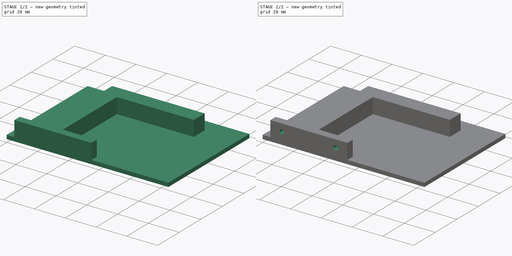
[diagram: build sequence overview — one tinted view per stage of 2, left to right]
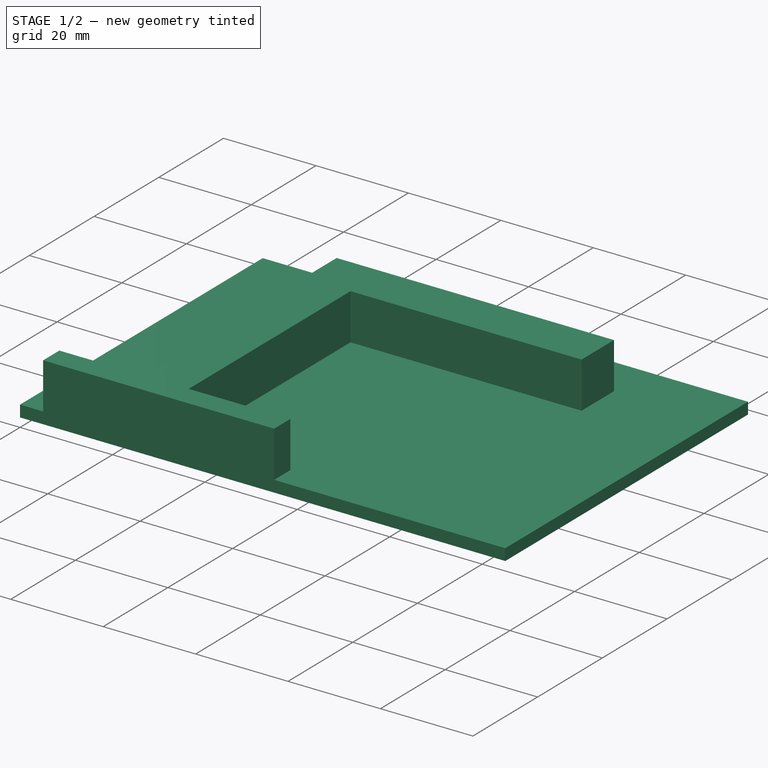
[diagram: stage 1 of 2 — iso view after this stage's code; geometry added in this stage tinted green]
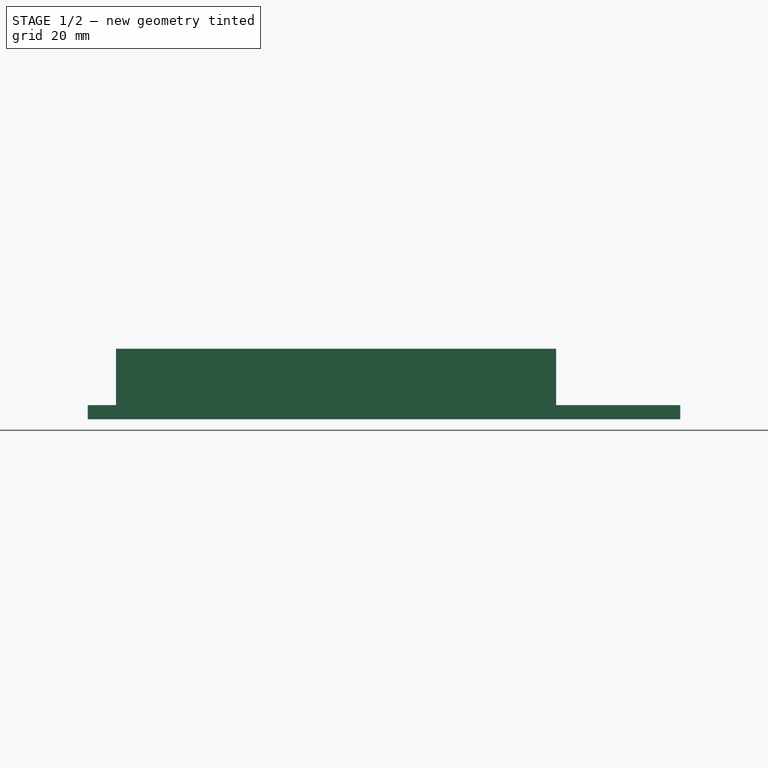
[diagram: stage 1 of 2 — front view after this stage's code; geometry added in this stage tinted green]
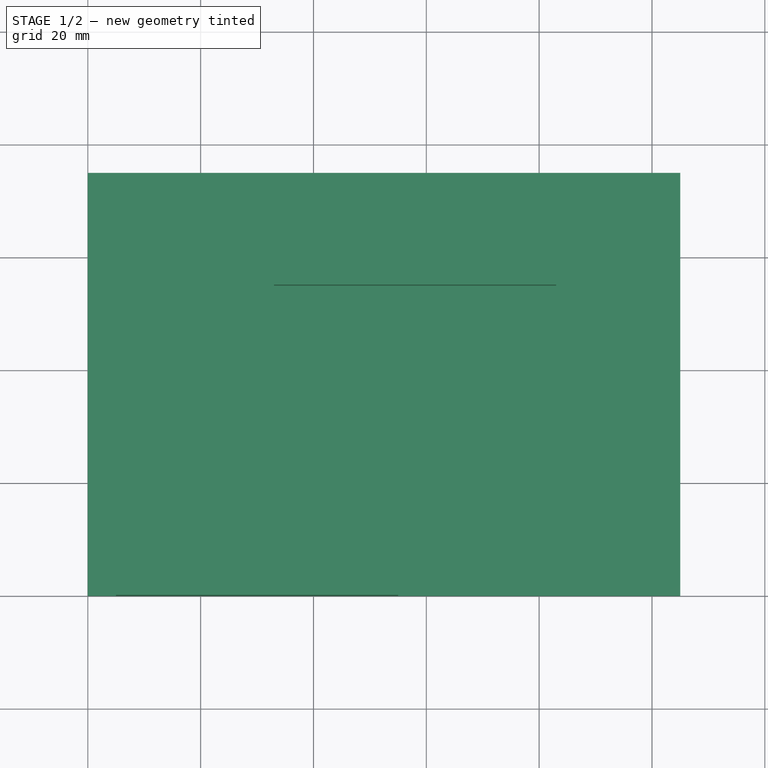
[diagram: stage 1 of 2 — top view after this stage's code; geometry added in this stage tinted green]
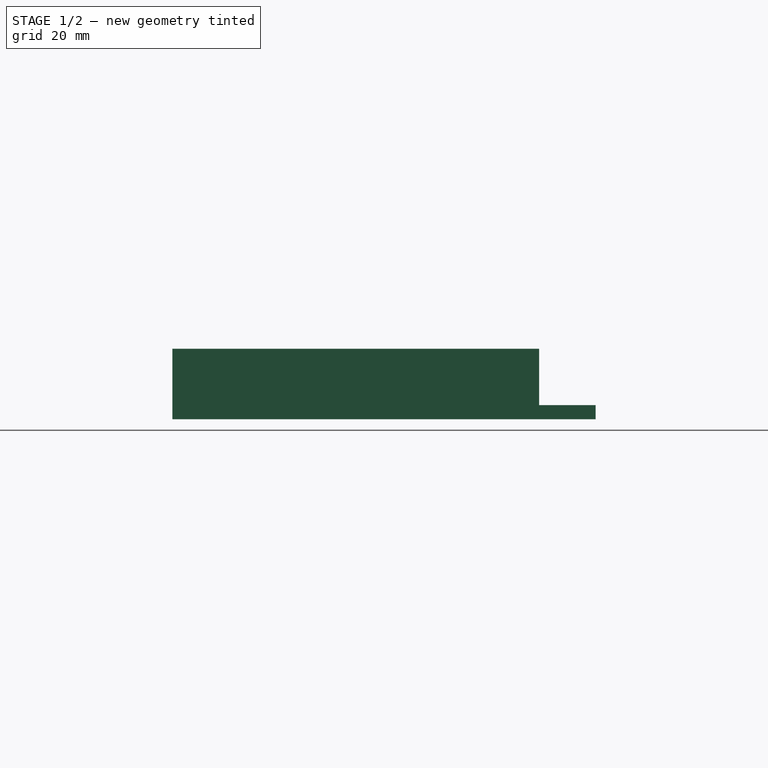
[diagram: stage 1 of 2 — right view after this stage's code; geometry added in this stage tinted green]
FCSTD DOCUMENT  (FreeCAD 0.16R6707 (Git))
Label: support_autocollants
License: All rights reserved
LicenseURL: http://en.wikipedia.org/wiki/All_rights_reserved
objects: Sketcher::SketchObject×3, PartDesign::Pad×2, PartDesign::Pocket×1
note: 9 computed .brp shape members not serialized (recipe doc carries the construction recipe); baked Part::Feature solids carry a one-line shape summary decoded from their .brp

FEATURE [Sketcher::SketchObject] Sketch
  sketch-geometry (4):
    g0: LineSegment StartX=0 StartY=0 StartZ=0 EndX=105 EndY=0 EndZ=0
    g1: LineSegment StartX=105 StartY=0 StartZ=0 EndX=105 EndY=75 EndZ=0
    g2: LineSegment StartX=105 StartY=75 StartZ=0 EndX=0 EndY=75 EndZ=0
    g3: LineSegment StartX=0 StartY=75 StartZ=0 EndX=0 EndY=0 EndZ=0
  constraints (11):
    c: Coincident(g0,g1)
    c: Coincident(g1,g2)
    c: Coincident(g2,g3)
    c: Coincident(g3,g0)
    c: Horizontal(g0)
    c: Horizontal(g2)
    c: Vertical(g1)
    c: Vertical(g3)
    c: Coincident(g0,g-1)
    c: Distance(g3) = 75
    c: Distance(g2) = 105
FEATURE [PartDesign::Pad] Pad
  Length = 2.5
  Length2 = 100
  Sketch = -> Sketch
  Type = 0
FEATURE [Sketcher::SketchObject] Sketch001
  Placement = pos=(0,0,2.5) rot=(0,0,1;0rad)
  Support = -> Pad [Face6]
  sketch-geometry (11):
    g0: LineSegment StartX=5 StartY=0 StartZ=0 EndX=5 EndY=5 EndZ=0
    g1: LineSegment StartX=5 StartY=5 StartZ=0 EndX=23 EndY=5 EndZ=0
    g2: LineSegment StartX=23 StartY=5 StartZ=0 EndX=23 EndY=65 EndZ=0
    g3: LineSegment StartX=23 StartY=65 StartZ=0 EndX=83 EndY=65 EndZ=0
    g4: LineSegment StartX=55 StartY=5 StartZ=0 EndX=55 EndY=0 EndZ=0
    g5: LineSegment StartX=55 StartY=0 StartZ=0 EndX=5 EndY=0 EndZ=0
    g6: GeomPoint [constr] X=105 Y=0 Z=0
    g7: LineSegment StartX=33 StartY=5 StartZ=0 EndX=55 EndY=5 EndZ=0
    g8: LineSegment StartX=33 StartY=5 StartZ=0 EndX=33 EndY=55 EndZ=0
    g9: LineSegment StartX=33 StartY=55 StartZ=0 EndX=83 EndY=55 EndZ=0
    g10: LineSegment StartX=83 StartY=65 StartZ=0 EndX=83 EndY=55 EndZ=0
  constraints (32):
    c: PointOnObject(g0,g-1)
    c: Vertical(g0)
    c: Coincident(g0,g1)
    c: Horizontal(g1)
    c: Coincident(g1,g2)
    c: Vertical(g2)
    c: Coincident(g2,g3)
    c: Horizontal(g3)
    c: PointOnObject(g4,g-1)
    c: Vertical(g4)
    c: Coincident(g4,g5)
    c: Coincident(g5,g0)
    c: DistanceY(g1,g7) = 0
    c: Distance(g3) = 60
    c: DistanceX(g0) = 5
    c: PointOnObject(g6,g-1)
    c: DistanceX(g6) = 105
    c: DistanceX(g4,g6) = 50
    c: Distance(g1) = 18
    c: Distance(g0) = 5
    c: Distance(g2) = 60
    c: Coincident(g7,g4)
    c: Horizontal(g7)
    c: Distance(g7) = 22
    c: Coincident(g7,g8)
    c: Vertical(g8)
    c: Coincident(g8,g9)
    c: Horizontal(g9)
    c: Coincident(g10,g3)
    c: Coincident(g10,g9)
    c: Vertical(g10)
    c: Distance(g10) = 10
FEATURE [PartDesign::Pad] Pad001
  Length = 10
  Length2 = 100
  Sketch = -> Sketch001
  Type = 0
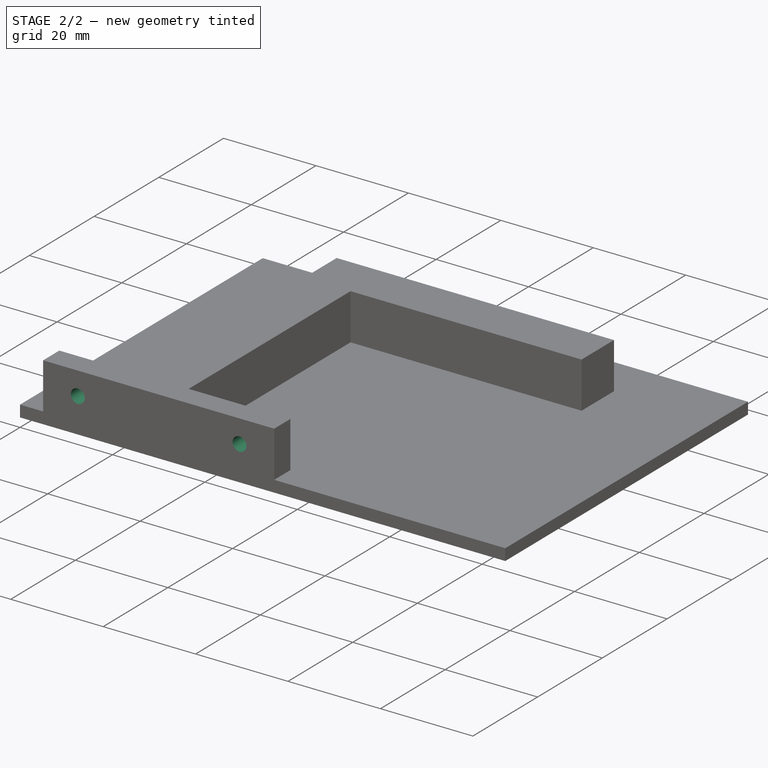
[diagram: stage 2 of 2 — iso view after this stage's code; geometry added in this stage tinted green]
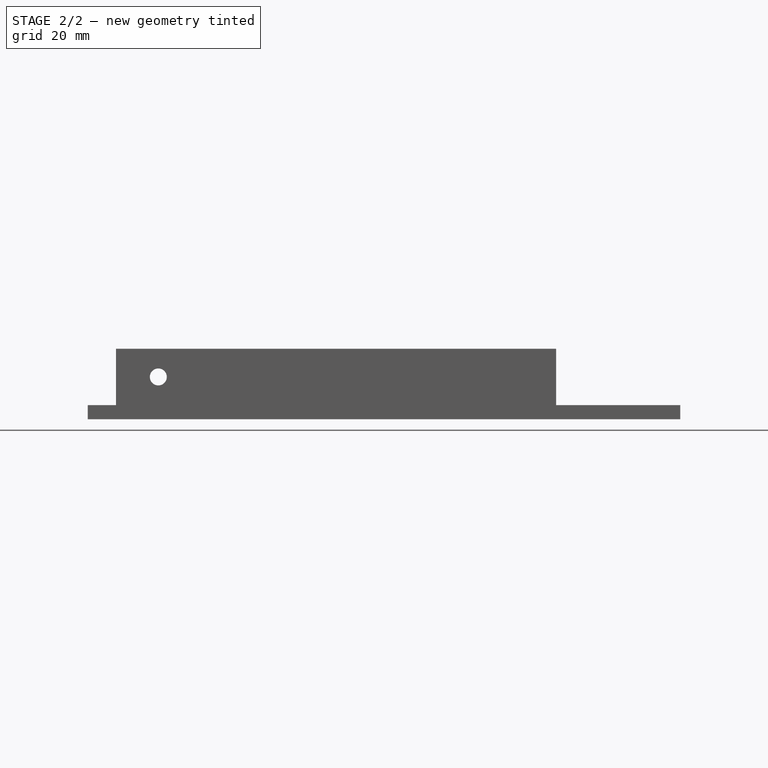
[diagram: stage 2 of 2 — front view after this stage's code; geometry added in this stage tinted green]
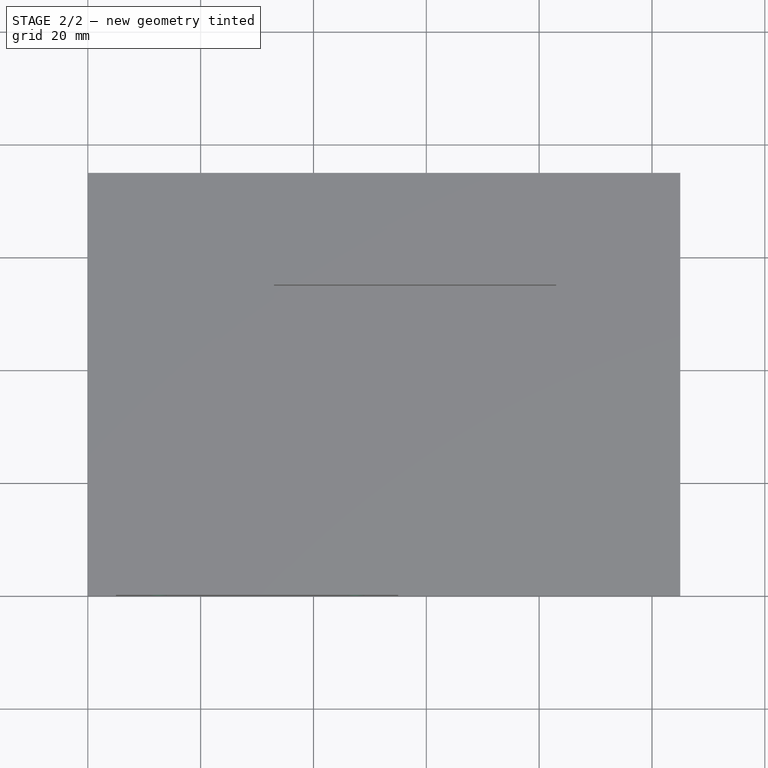
[diagram: stage 2 of 2 — top view after this stage's code; geometry added in this stage tinted green]
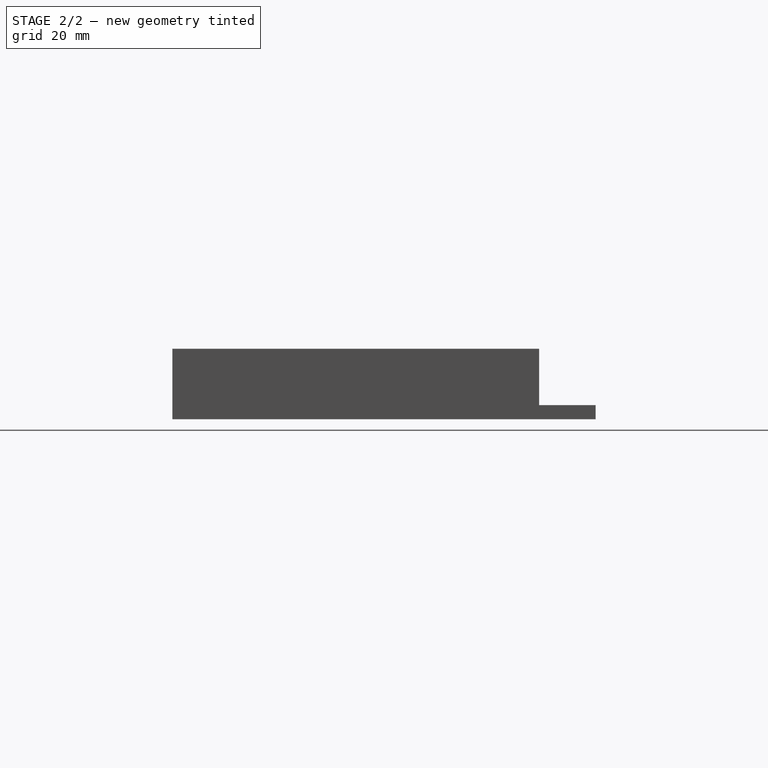
[diagram: stage 2 of 2 — right view after this stage's code; geometry added in this stage tinted green]
FEATURE [Sketcher::SketchObject] Sketch002
  Placement = pos=(0,5,0) rot=(0,0.707107,0.707107;3.14159rad)
  Support = -> Pad001 [Face9]
  sketch-geometry (3):
    g0: Circle CenterX=-12.5 CenterY=7.5 CenterZ=0 NormalX=0 NormalY=0 NormalZ=1 Radius=1.5
    g1: Circle CenterX=-47.5 CenterY=7.5 CenterZ=0 NormalX=0 NormalY=0 NormalZ=1 Radius=1.5
    g2: GeomPoint [constr] X=-52.5 Y=7.5 Z=0
  constraints (8):
    c: DistanceX(g2) = -52.5
    c: Radius(g0) = 1.5
    c: Equal(g0,g1)
    c: DistanceY(g0,g2) = 0
    c: DistanceY(g1,g2) = 0
    c: DistanceY(g2) = 7.5
    c: DistanceX(g0,g2) = -40
    c: DistanceX(g2,g1) = 5
FEATURE [PartDesign::Pocket] Pocket
  Length = 5
  Sketch = -> Sketch002
  Type = 1
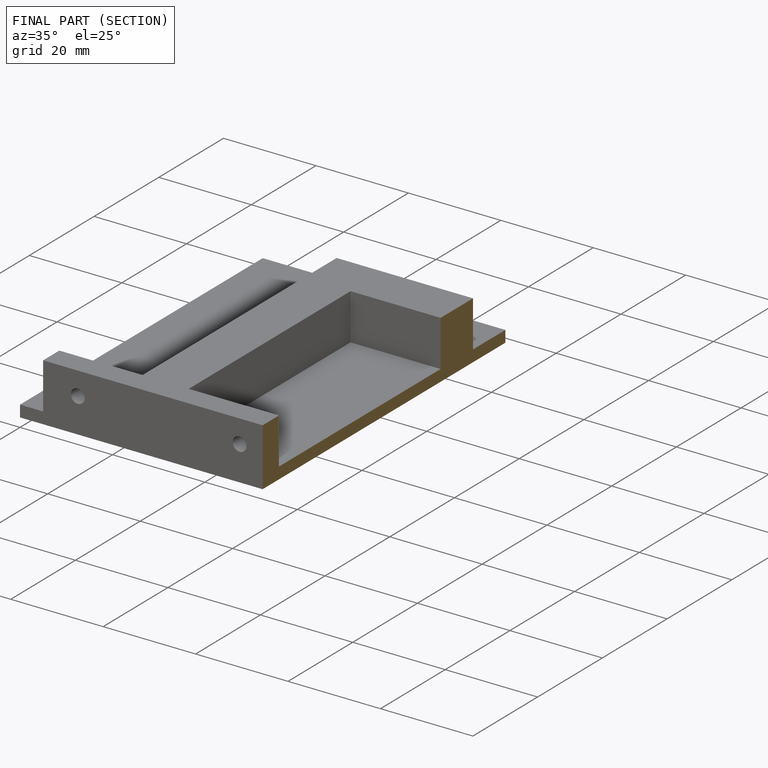
[diagram: finished part — half-section view (interior)]
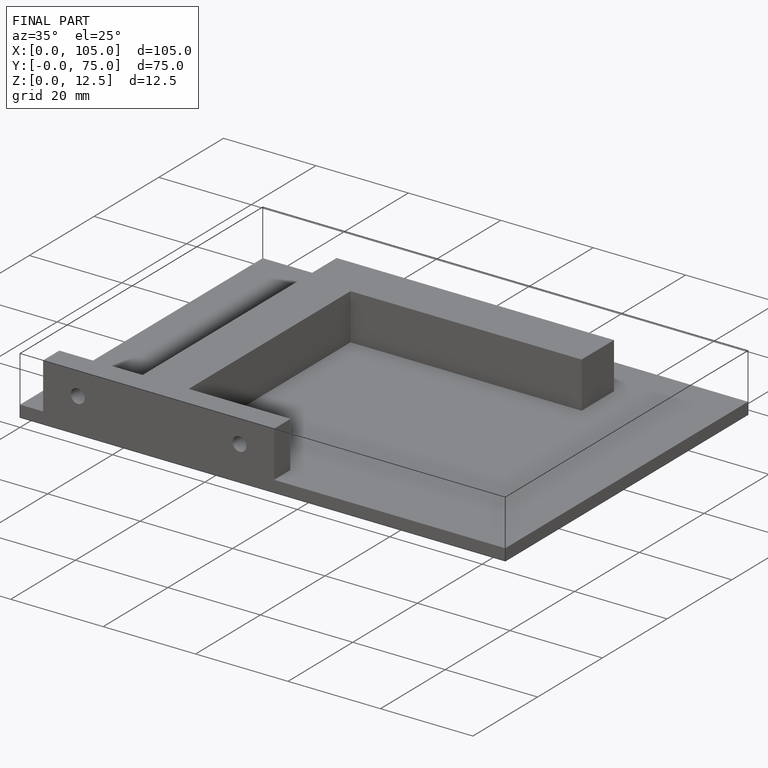
[diagram: finished part — iso view with bounding-box wireframe]
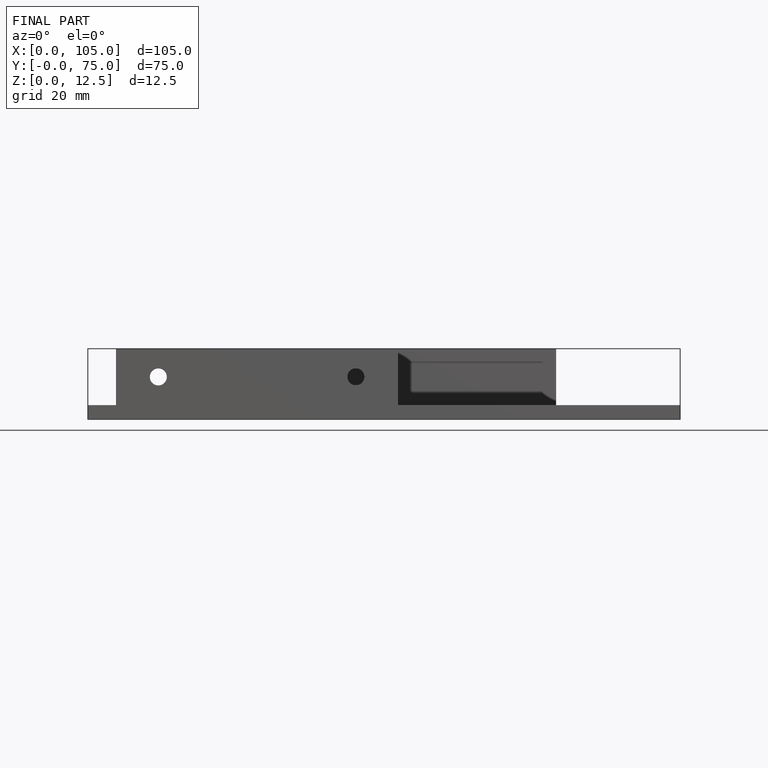
[diagram: finished part — front view with bounding-box wireframe]
